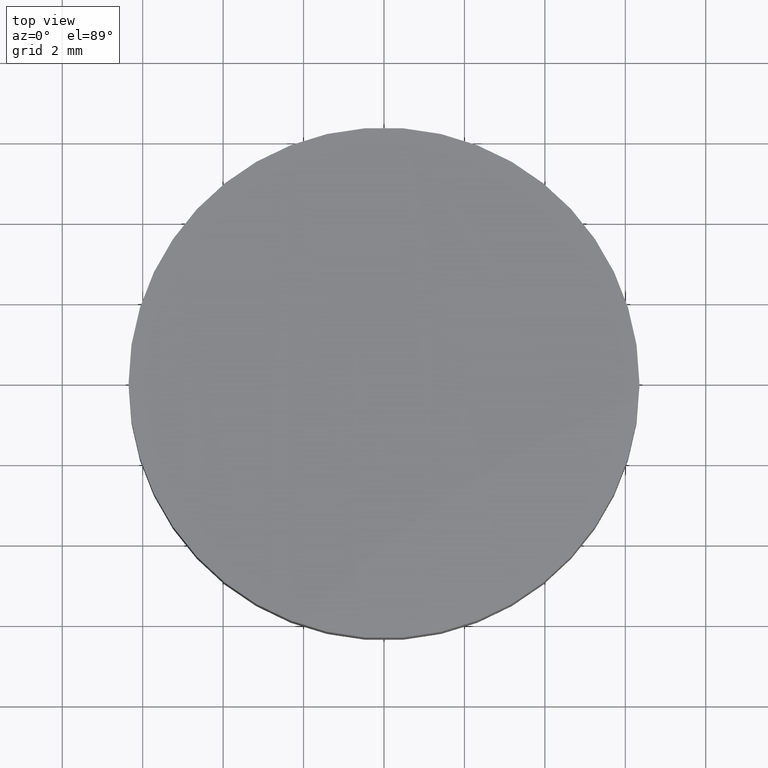
[diagram: clean part render]
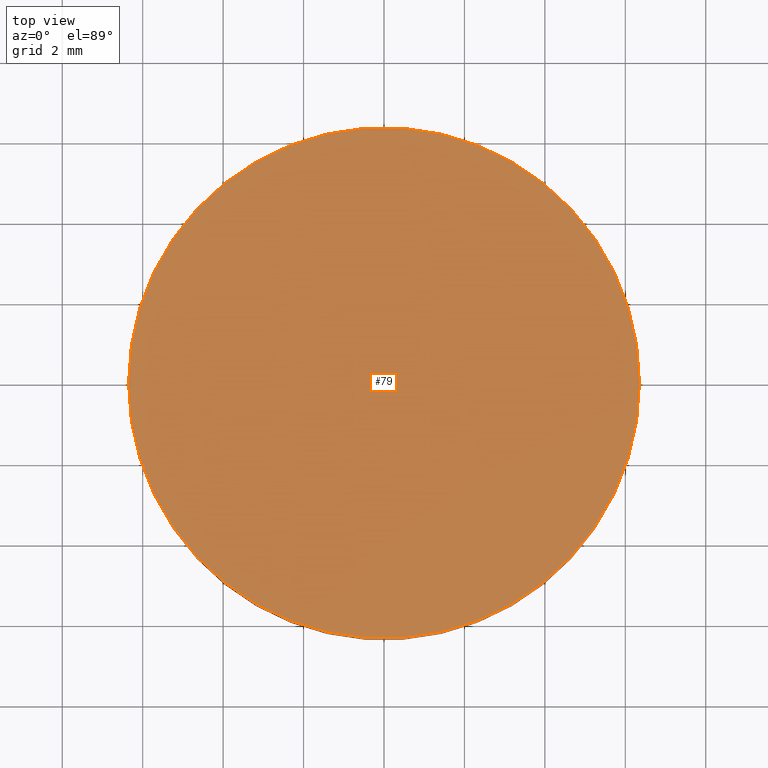
[diagram: same view with one face highlighted and labeled with its STEP entity id]
A machine part, top view. The second image highlights one B-rep face of the part: STEP entity #79.
In plain terms, the highlighted planar face has unit normal (0, 0, 1).
Its self-contained STEP definition (entity closure, byte-faithful):
#3 = DIRECTION ( 'NONE',  ( 0.0000000000000000000, 0.0000000000000000000, 1.000000000000000000 ) ) ;
#4 = DIRECTION ( 'NONE',  ( 0.0000000000000000000, 0.0000000000000000000, 1.000000000000000000 ) ) ;
#5 = DIRECTION ( 'NONE',  ( 1.000000000000000000, 0.0000000000000000000, 0.0000000000000000000 ) ) ;
#6 = FACE_OUTER_BOUND ( 'NONE', #44, .T. ) ;
#7 = EDGE_CURVE ( 'NONE', #117, #127, #41, .T. ) ;
#14 = PLANE ( 'NONE',  #93 ) ;
#19 = AXIS2_PLACEMENT_3D ( 'NONE', #26, #53, #5 ) ;
#26 = CARTESIAN_POINT ( 'NONE',  ( 0.0000000000000000000, 0.0000000000000000000, 3.000000000000000000 ) ) ;
#28 = ORIENTED_EDGE ( 'NONE', *, *, #7, .T. ) ;
#41 = CIRCLE ( 'NONE', #19, 6.349999999999999600 ) ;
#44 = EDGE_LOOP ( 'NONE', ( #28, #130 ) ) ;
#51 = AXIS2_PLACEMENT_3D ( 'NONE', #86, #3, #72 ) ;
#53 = DIRECTION ( 'NONE',  ( 0.0000000000000000000, 0.0000000000000000000, 1.000000000000000000 ) ) ;
#60 = CARTESIAN_POINT ( 'NONE',  ( -6.349999999999999600, 0.0000000000000000000, 3.000000000000000000 ) ) ;
#63 = CIRCLE ( 'NONE', #51, 6.349999999999999600 ) ;
#72 = DIRECTION ( 'NONE',  ( 1.000000000000000000, 0.0000000000000000000, 0.0000000000000000000 ) ) ;
#75 = DIRECTION ( 'NONE',  ( 1.000000000000000000, 0.0000000000000000000, -0.0000000000000000000 ) ) ;
#79 = ADVANCED_FACE ( 'NONE', ( #6 ), #14, .T. ) ;
#86 = CARTESIAN_POINT ( 'NONE',  ( 0.0000000000000000000, 0.0000000000000000000, 3.000000000000000000 ) ) ;
#89 = EDGE_CURVE ( 'NONE', #127, #117, #63, .T. ) ;
#93 = AXIS2_PLACEMENT_3D ( 'NONE', #118, #4, #75 ) ;
#117 = VERTEX_POINT ( 'NONE', #60 ) ;
#118 = CARTESIAN_POINT ( 'NONE',  ( 0.0000000000000000000, 0.0000000000000000000, 3.000000000000000000 ) ) ;
#127 = VERTEX_POINT ( 'NONE', #134 ) ;
#130 = ORIENTED_EDGE ( 'NONE', *, *, #89, .T. ) ;
#134 = CARTESIAN_POINT ( 'NONE',  ( 6.349999999999999600, 7.776507174585692200E-016, 3.000000000000000000 ) ) ;